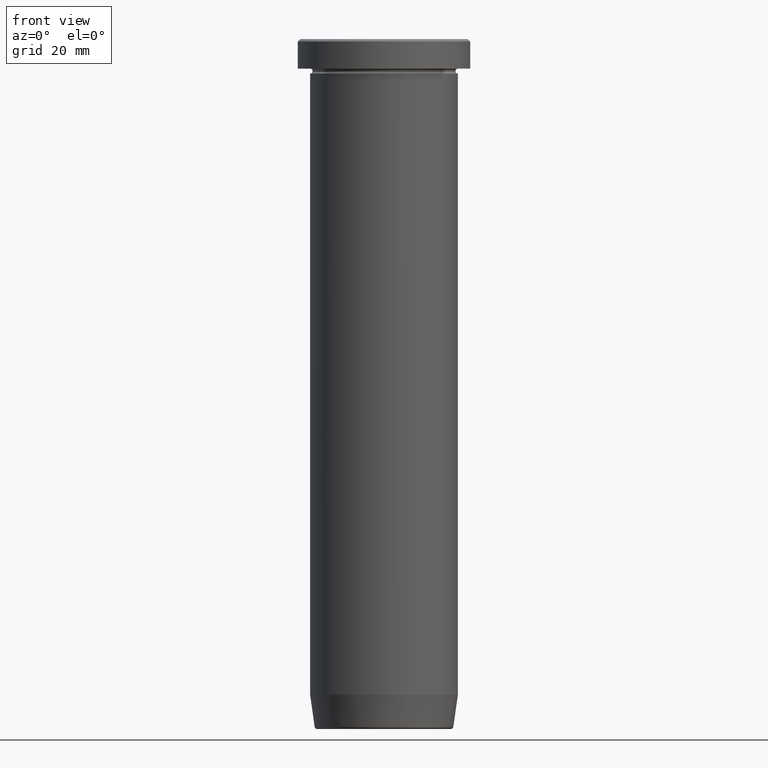
[diagram: clean part render]
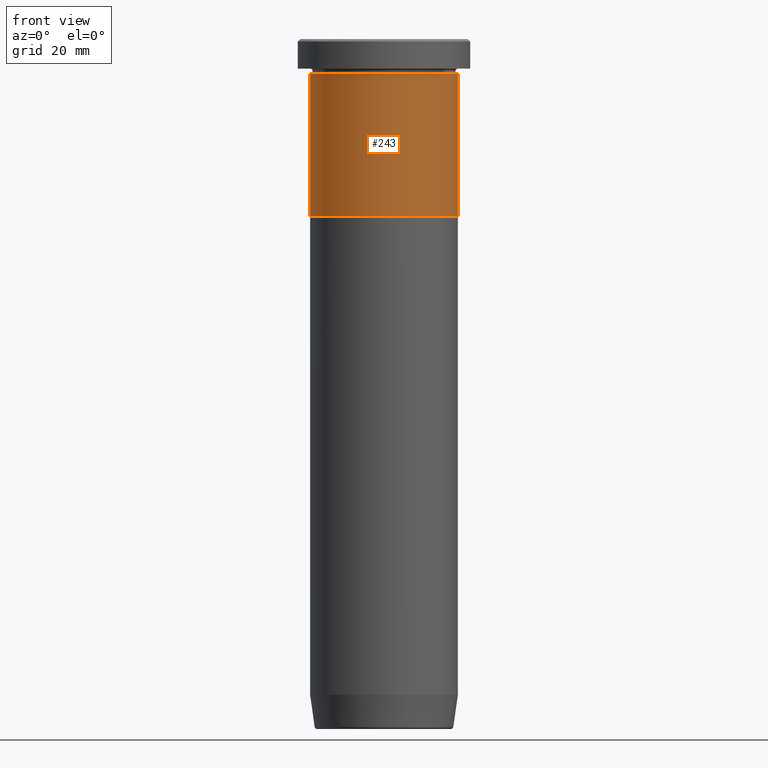
[diagram: same view with one face highlighted and labeled with its STEP entity id]
A machine part, front view. The second image highlights one B-rep face of the part: STEP entity #243.
In plain terms, the highlighted cylindrical surface (partial cylindrical patch) has radius 15 mm, axis along (-0, -0, 1).
Its self-contained STEP definition (entity closure, byte-faithful):
#23 = AXIS2_PLACEMENT_3D ( 'NONE', #335, #247, #373 ) ;
#29 = DIRECTION ( 'NONE',  ( -0.000000000000000000, -0.000000000000000000, 1.000000000000000000 ) ) ;
#32 = CIRCLE ( 'NONE', #192, 15.00000000000000000 ) ;
#45 = DIRECTION ( 'NONE',  ( -0.000000000000000000, -0.000000000000000000, 1.000000000000000000 ) ) ;
#88 = FACE_OUTER_BOUND ( 'NONE', #234, .T. ) ;
#123 = DIRECTION ( 'NONE',  ( -0.000000000000000000, -0.000000000000000000, 1.000000000000000000 ) ) ;
#142 = CARTESIAN_POINT ( 'NONE',  ( 0.000000000000000000, 0.000000000000000000, 0.000000000000000000 ) ) ;
#158 = CARTESIAN_POINT ( 'NONE',  ( 15.00000000000000000, 0.000000000000000000, -6.999999999999999112 ) ) ;
#184 = CARTESIAN_POINT ( 'NONE',  ( -15.00000000000000000, 1.836970198721029589E-15, -36.00000000000000000 ) ) ;
#188 = CARTESIAN_POINT ( 'NONE',  ( -15.00000000000000000, 1.836970198721029589E-15, -6.999999999999999112 ) ) ;
#192 = AXIS2_PLACEMENT_3D ( 'NONE', #529, #29, #534 ) ;
#218 = VERTEX_POINT ( 'NONE', #184 ) ;
#234 = EDGE_LOOP ( 'NONE', ( #387, #290, #405, #349 ) ) ;
#243 = ADVANCED_FACE ( 'NONE', ( #88 ), #462, .T. ) ;
#247 = DIRECTION ( 'NONE',  ( -0.000000000000000000, -0.000000000000000000, 1.000000000000000000 ) ) ;
#251 = VERTEX_POINT ( 'NONE', #188 ) ;
#270 = VERTEX_POINT ( 'NONE', #158 ) ;
#284 = CIRCLE ( 'NONE', #23, 15.00000000000000000 ) ;
#290 = ORIENTED_EDGE ( 'NONE', *, *, #296, .T. ) ;
#296 = EDGE_CURVE ( 'NONE', #218, #539, #284, .T. ) ;
#304 = LINE ( 'NONE', #577, #536 ) ;
#335 = CARTESIAN_POINT ( 'NONE',  ( 0.000000000000000000, 0.000000000000000000, -36.00000000000000000 ) ) ;
#345 = LINE ( 'NONE', #490, #564 ) ;
#349 = ORIENTED_EDGE ( 'NONE', *, *, #468, .F. ) ;
#373 = DIRECTION ( 'NONE',  ( 1.000000000000000000, 0.000000000000000000, 0.000000000000000000 ) ) ;
#387 = ORIENTED_EDGE ( 'NONE', *, *, #530, .F. ) ;
#405 = ORIENTED_EDGE ( 'NONE', *, *, #487, .T. ) ;
#418 = DIRECTION ( 'NONE',  ( 1.000000000000000000, 0.000000000000000000, 0.000000000000000000 ) ) ;
#462 = CYLINDRICAL_SURFACE ( 'NONE', #466, 15.00000000000000000 ) ;
#466 = AXIS2_PLACEMENT_3D ( 'NONE', #142, #45, #418 ) ;
#468 = EDGE_CURVE ( 'NONE', #251, #270, #32, .T. ) ;
#487 = EDGE_CURVE ( 'NONE', #539, #270, #304, .T. ) ;
#490 = CARTESIAN_POINT ( 'NONE',  ( -15.00000000000000000, 1.836970198721029589E-15, 0.000000000000000000 ) ) ;
#492 = DIRECTION ( 'NONE',  ( -0.000000000000000000, -0.000000000000000000, 1.000000000000000000 ) ) ;
#529 = CARTESIAN_POINT ( 'NONE',  ( 0.000000000000000000, 0.000000000000000000, -6.999999999999999112 ) ) ;
#530 = EDGE_CURVE ( 'NONE', #218, #251, #345, .T. ) ;
#534 = DIRECTION ( 'NONE',  ( 1.000000000000000000, 0.000000000000000000, 0.000000000000000000 ) ) ;
#536 = VECTOR ( 'NONE', #492, 1000.000000000000000 ) ;
#539 = VERTEX_POINT ( 'NONE', #540 ) ;
#540 = CARTESIAN_POINT ( 'NONE',  ( 15.00000000000000000, 0.000000000000000000, -36.00000000000000000 ) ) ;
#564 = VECTOR ( 'NONE', #123, 1000.000000000000000 ) ;
#577 = CARTESIAN_POINT ( 'NONE',  ( 15.00000000000000000, 0.000000000000000000, 0.000000000000000000 ) ) ;